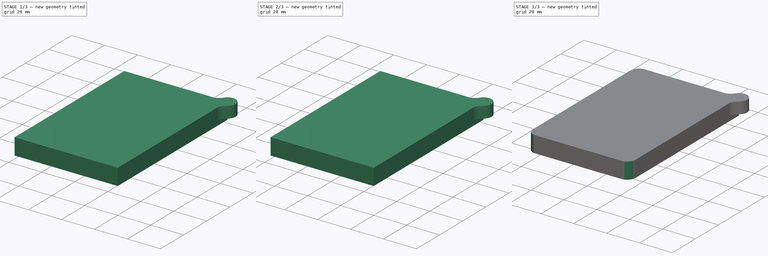
[diagram: build sequence overview — one tinted view per stage of 3, left to right]
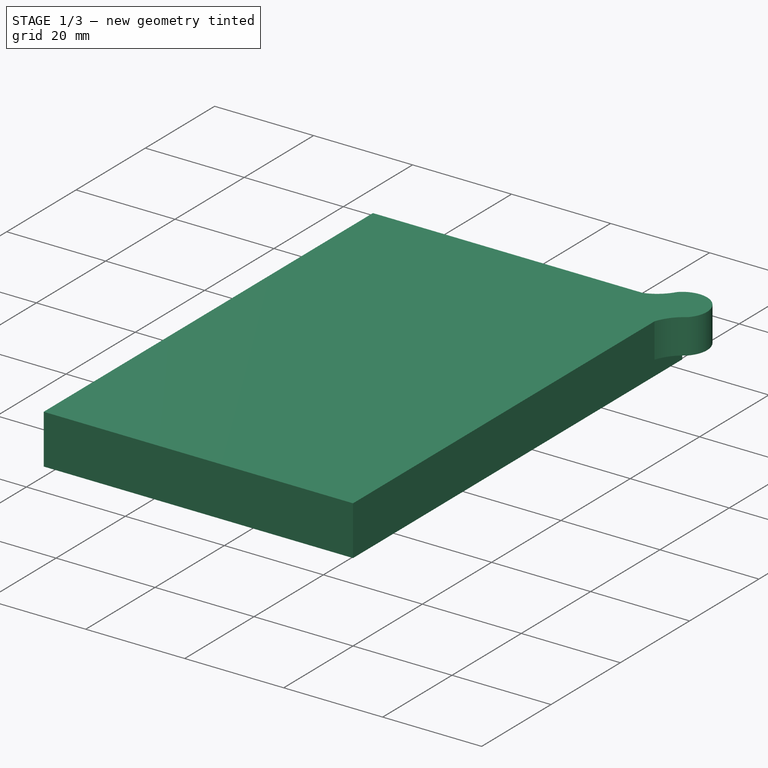
[diagram: stage 1 of 3 — iso view after this stage's code; geometry added in this stage tinted green]
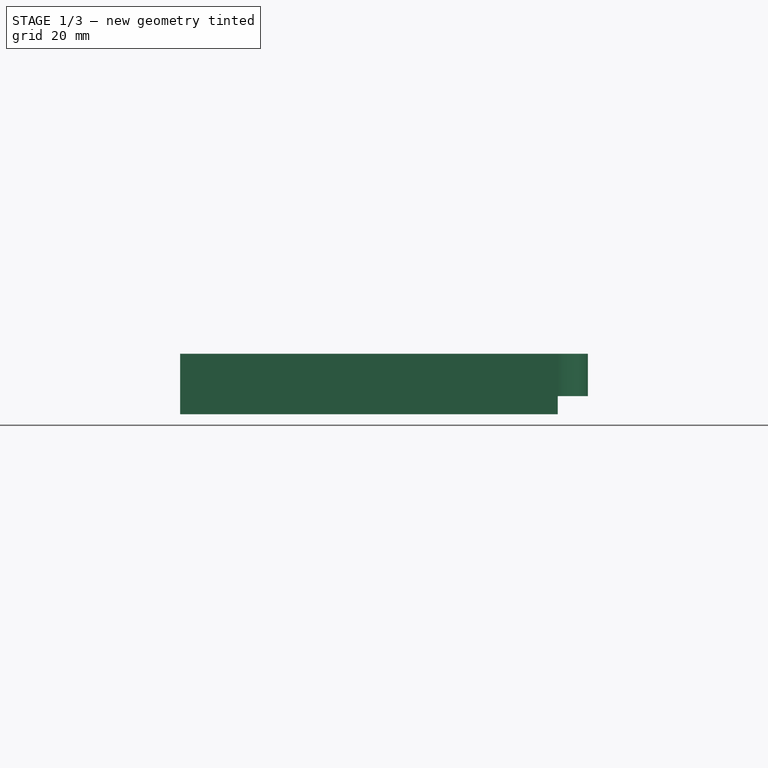
[diagram: stage 1 of 3 — front view after this stage's code; geometry added in this stage tinted green]
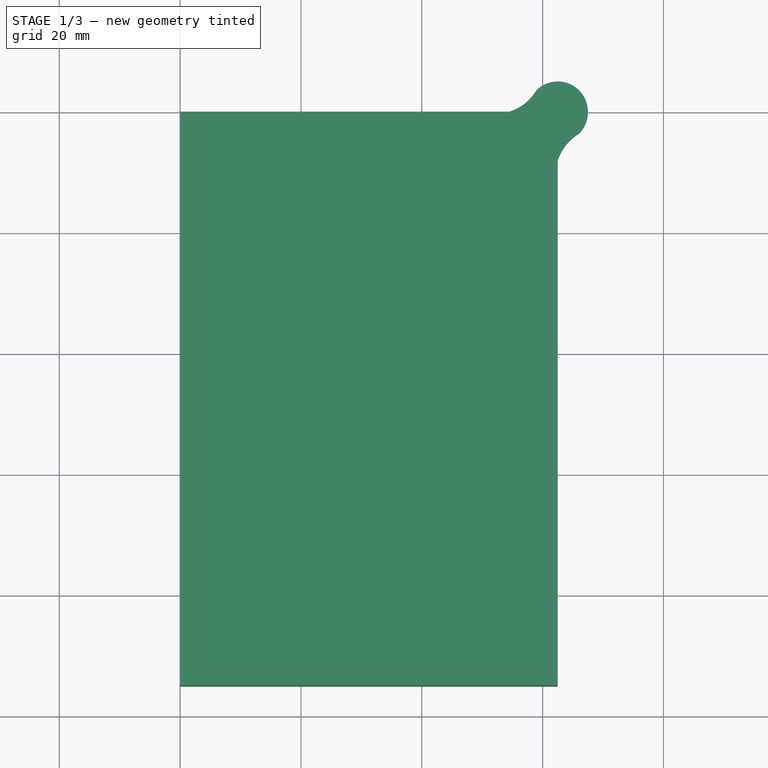
[diagram: stage 1 of 3 — top view after this stage's code; geometry added in this stage tinted green]
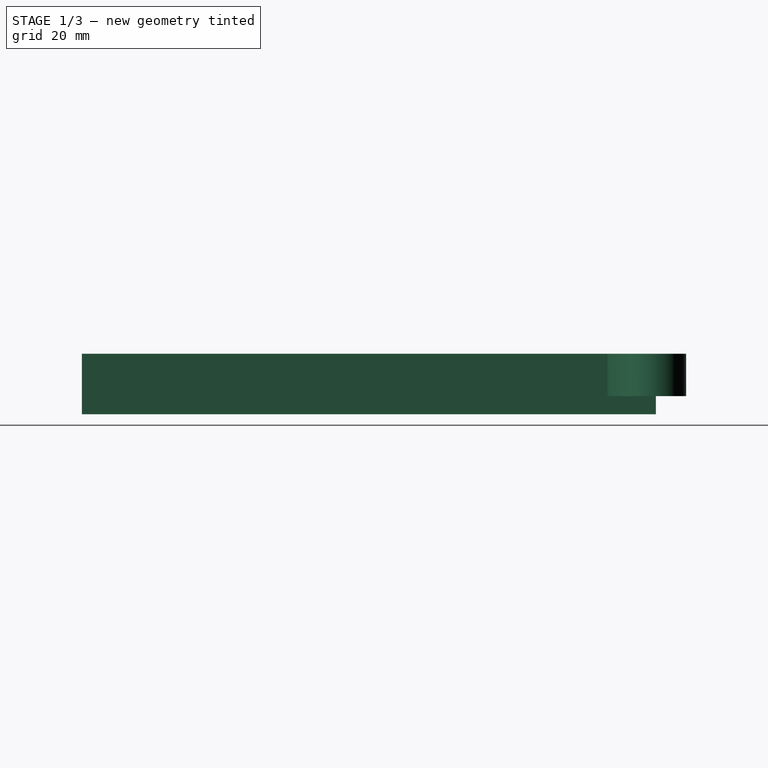
[diagram: stage 1 of 3 — right view after this stage's code; geometry added in this stage tinted green]
FCSTD DOCUMENT  (FreeCAD 0.20R29410 (Git))
Label: kit
License: All rights reserved
LicenseURL: http://en.wikipedia.org/wiki/All_rights_reserved
objects: Sketcher::SketchObject×4, PartDesign::Pad×3, PartDesign::Pocket×1, PartDesign::Fillet×1, PartDesign::Body×1
note: 15 computed .brp shape members not serialized (recipe doc carries the construction recipe); baked Part::Feature solids carry a one-line shape summary decoded from their .brp

FEATURE [Sketcher::SketchObject] Sketch
  FullyConstrained = true
  MapMode = 5
  Support = -> [XY_Plane]
  sketch-geometry (4):
    g0: LineSegment StartX=0 StartY=0 StartZ=0 EndX=62.5 EndY=0 EndZ=0
    g1: LineSegment StartX=62.5 StartY=0 StartZ=0 EndX=62.5 EndY=-95 EndZ=0
    g2: LineSegment StartX=62.5 StartY=-95 StartZ=0 EndX=0 EndY=-95 EndZ=0
    g3: LineSegment StartX=0 StartY=-95 StartZ=0 EndX=0 EndY=0 EndZ=0
  constraints (11):
    c: Coincident(g0,g1)
    c: Coincident(g1,g2)
    c: Coincident(g2,g3)
    c: Coincident(g3,g0)
    c: Horizontal(g0)
    c: Horizontal(g2)
    c: Vertical(g1)
    c: Vertical(g3)
    c: Coincident(g0,g-1)
    c: Distance(g0) = 62.5
    c: Distance(g3) = 95
FEATURE [PartDesign::Pad] Pad
  Direction = (0,0,1)
  Length = 10
  Length2 = 10
  Profile = -> Sketch
  ReferenceAxis = -> Sketch [N_Axis]
  Type = 0
FEATURE [Sketcher::SketchObject] Sketch001
  ExternalGeometry = -> [Pad]
  FullyConstrained = false
  MapMode = 5
  Placement = pos=(0,0,10) rot=(0,0,1;0rad)
  Support = -> [Pad]
  sketch-geometry (17):
    g0: LineSegment StartX=62.5 StartY=0 StartZ=0 EndX=62.5 EndY=-2 EndZ=0
    g1: LineSegment StartX=62.5 StartY=-2 StartZ=0 EndX=60.5 EndY=-2 EndZ=0
    g2: LineSegment StartX=62.5 StartY=0 StartZ=0 EndX=62.5 EndY=3 EndZ=0
    g3: Circle CenterX=62.5 CenterY=0 CenterZ=0 NormalX=0 NormalY=0 NormalZ=1 AngleXU=0 Radius=5
    g4: LineSegment StartX=62.5 StartY=0 StartZ=0 EndX=54.5 EndY=0 EndZ=0
    g5: LineSegment StartX=62.5 StartY=0 StartZ=0 EndX=62.5 EndY=-8 EndZ=0
    g6: LineSegment StartX=62.5 StartY=0 StartZ=0 EndX=67.5 EndY=0 EndZ=0
    g7: LineSegment StartX=62.5 StartY=0 StartZ=0 EndX=62.5 EndY=5 EndZ=0
    g8: LineSegment StartX=62.5 StartY=0 StartZ=0 EndX=58.9645 EndY=3.53553 EndZ=0
    g9: LineSegment StartX=62.5 StartY=0 StartZ=0 EndX=66.0355 EndY=-3.53554 EndZ=0
    g10: ArcOfCircle CenterX=52.1469 CenterY=7.55788 CenterZ=0 NormalX=0 NormalY=0 NormalZ=1 AngleXU=0 Radius=7.91572 StartAngle=5.01422 EndAngle=5.75015
    g11: ArcOfCircle CenterX=70.3041 CenterY=-10.5481 CenterZ=0 NormalX=0 NormalY=0 NormalZ=1 AngleXU=0 Radius=8.20954 StartAngle=2.11759 EndAngle=2.826
    g12: ArcOfCircle CenterX=62.5 CenterY=0 CenterZ=0 NormalX=0 NormalY=0 NormalZ=1 AngleXU=0 Radius=5 StartAngle=5.49778 EndAngle=8.63938
    g13: ArcOfCircle CenterX=62.5 CenterY=0 CenterZ=0 NormalX=0 NormalY=0 NormalZ=1 AngleXU=0 Radius=5 StartAngle=5.49778 EndAngle=8.63938
    g14: ArcOfCircle CenterX=52.1469 CenterY=7.55788 CenterZ=0 NormalX=0 NormalY=0 NormalZ=1 AngleXU=0 Radius=7.91572 StartAngle=5.01422 EndAngle=5.75015
    g15: ArcOfCircle CenterX=70.3041 CenterY=-10.5481 CenterZ=0 NormalX=0 NormalY=0 NormalZ=1 AngleXU=0 Radius=8.20954 StartAngle=2.11759 EndAngle=2.826
    g16: LineSegment StartX=54.5 StartY=0 StartZ=0 EndX=62.5 EndY=-8 EndZ=0
  constraints (43):
    c: Coincident(g0,g-4)
    c: Coincident(g1,g0)
    c: Horizontal(g1)
    c: Distance(g0) = 2
    c: Vertical(g0)
    c: Distance(g1) = 2
    c: Coincident(g2,g0)
    c: Vertical(g2)
    c: Distance(g2) = 3
    c: Coincident(g3,g0)
    c: Diameter(g3) = 10
    c: Coincident(g4,g0)
    c: Distance(g4) = 8
    c: Horizontal(g4)
    c: Coincident(g5,g0)
    c: Distance(g5) = 8
    c: Vertical(g5)
    c: Coincident(g6,g0)
    c: PointOnObject(g6,g3)
    c: Horizontal(g6)
    c: Coincident(g7,g0)
    c: PointOnObject(g7,g3)
    c: Vertical(g7)
    c: Coincident(g8,g0)
    c: PointOnObject(g8,g3)
    c: Coincident(g9,g0)
    c: Angle(g8,g4) = 0.785398
    c: Coincident(g10,g4)
    c: Coincident(g10,g8)
    c: Coincident(g11,g5)
    c: Coincident(g11,g9)
    c: Coincident(g12,g0)
    c: Coincident(g12,g8)
    c: Coincident(g12,g9)
    c: Coincident(g13,g0)
    c: Coincident(g13,g8)
    c: Coincident(g14,g4)
    c: Coincident(g14,g13)
    c: Coincident(g15,g13)
    c: Coincident(g15,g5)
    c: Tangent(g15,g11)
    c: Coincident(g16,g14)
    c: Coincident(g16,g15)
FEATURE [PartDesign::Pad] Pad001
  BaseFeature = -> Pad
  Direction = (0,0,1)
  Length = 7
  Length2 = 10
  Profile = -> Sketch001
  ReferenceAxis = -> Sketch001 [N_Axis]
  Reversed = true
  Type = 0
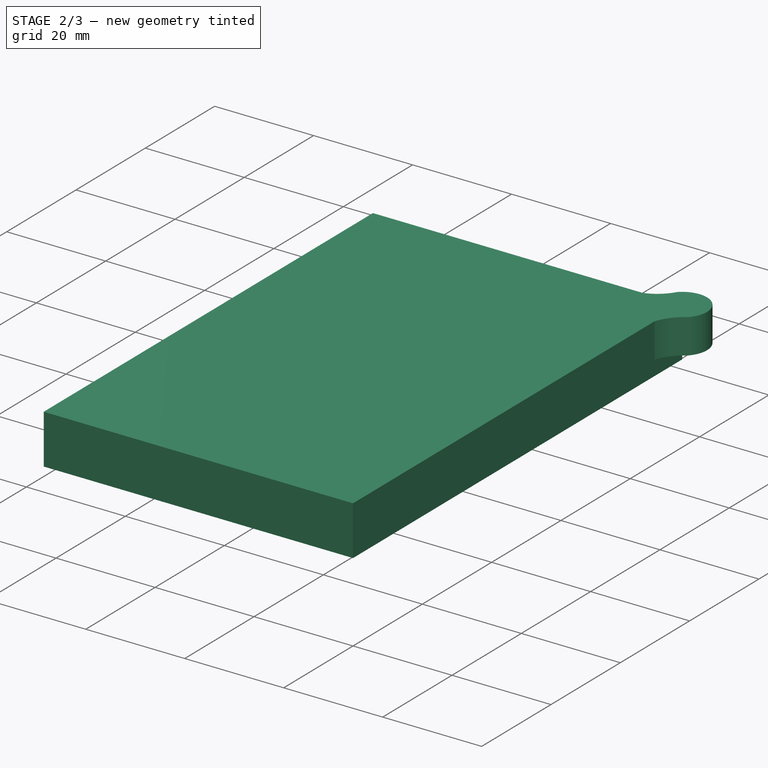
[diagram: stage 2 of 3 — iso view after this stage's code; geometry added in this stage tinted green]
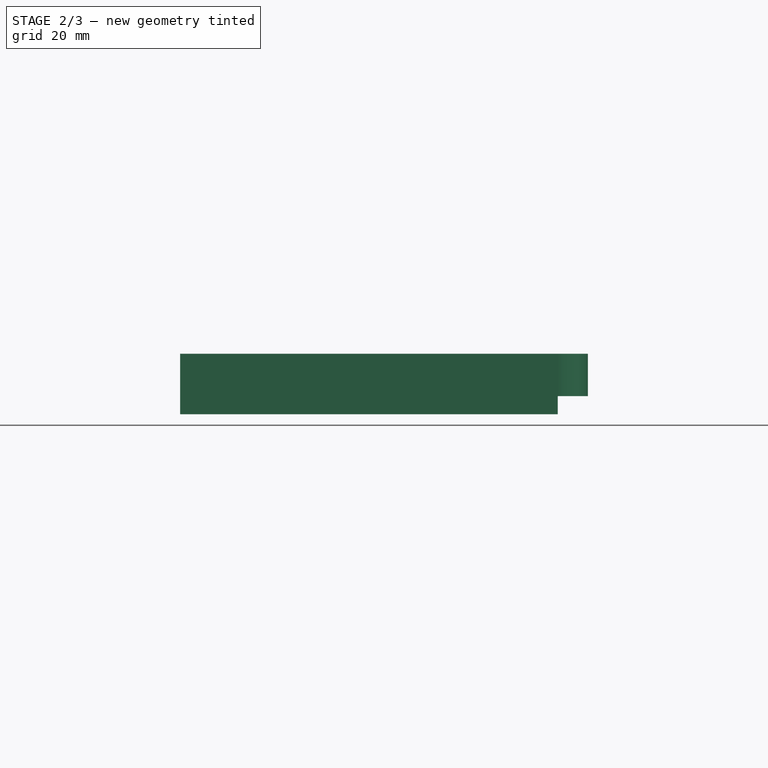
[diagram: stage 2 of 3 — front view after this stage's code; geometry added in this stage tinted green]
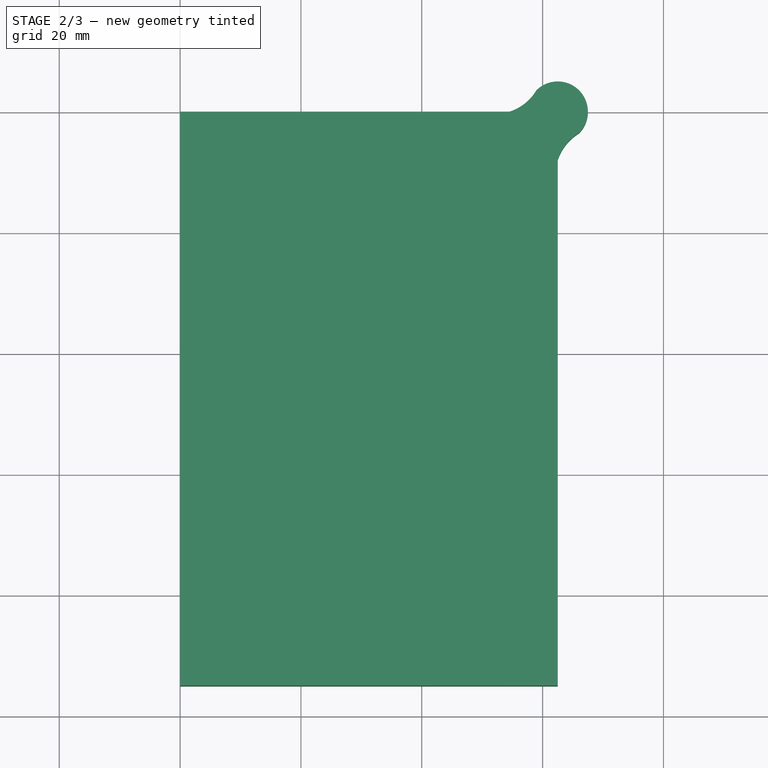
[diagram: stage 2 of 3 — top view after this stage's code; geometry added in this stage tinted green]
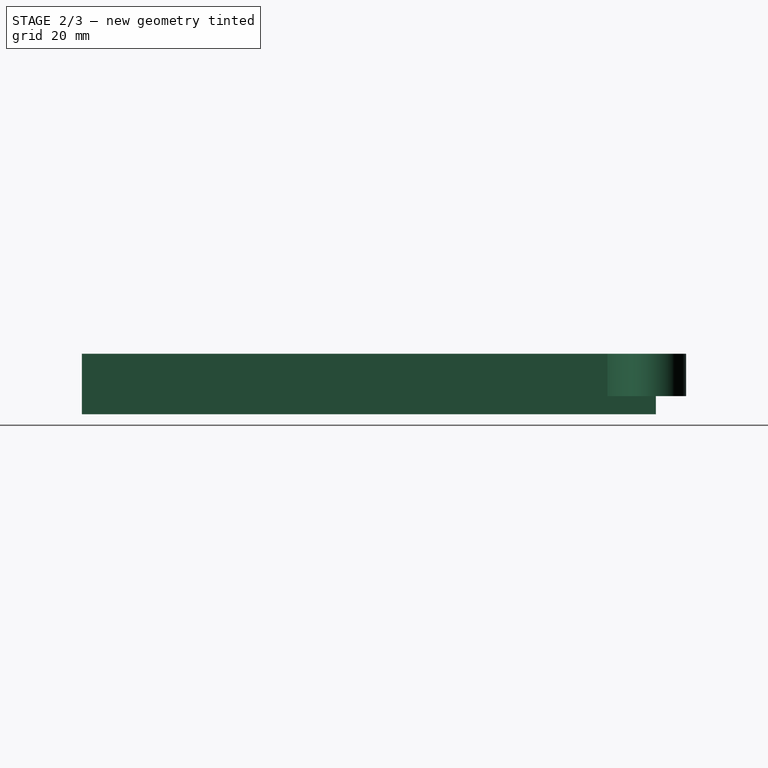
[diagram: stage 2 of 3 — right view after this stage's code; geometry added in this stage tinted green]
FEATURE [Sketcher::SketchObject] Sketch002
  ExternalGeometry = -> [Pad001]
  FullyConstrained = true
  MapMode = 5
  Placement = pos=(0,0,0) rot=(1,0,0;3.14159rad)
  Support = -> [Pad001]
  sketch-geometry (5):
    g0: LineSegment StartX=54.5 StartY=0 StartZ=0 EndX=62.5 EndY=0 EndZ=0
    g1: LineSegment StartX=62.5 StartY=0 StartZ=0 EndX=62.5 EndY=8 EndZ=0
    g2: ArcOfCircle CenterX=62.5 CenterY=0 CenterZ=0 NormalX=0 NormalY=0 NormalZ=1 AngleXU=0 Radius=5 StartAngle=3.92699 EndAngle=7.06859
    g3: ArcOfCircle CenterX=52.1469 CenterY=-7.55788 CenterZ=0 NormalX=0 NormalY=0 NormalZ=1 AngleXU=0 Radius=7.91572 StartAngle=0.533031 EndAngle=1.26896
    g4: ArcOfCircle CenterX=70.3041 CenterY=10.5481 CenterZ=0 NormalX=0 NormalY=0 NormalZ=1 AngleXU=0 Radius=8.20954 StartAngle=3.45719 EndAngle=4.1656
  constraints (13):
    c: Coincident(g0,g-5)
    c: Coincident(g0,g-4)
    c: Coincident(g1,g0)
    c: Coincident(g1,g-3)
    c: Coincident(g2,g0)
    c: Coincident(g2,g-4)
    c: Coincident(g2,g-5)
    c: Coincident(g3,g0)
    c: Coincident(g3,g2)
    c: Tangent(g3,g-5)
    c: Coincident(g4,g1)
    c: Coincident(g4,g2)
    c: Tangent(g4,g-3)
FEATURE [PartDesign::Pocket] Pocket
  BaseFeature = -> Pad001
  Direction = (0,0,1)
  Length = 3
  Length2 = 5
  Profile = -> Sketch002
  ReferenceAxis = -> Sketch002 [N_Axis]
  Type = 0
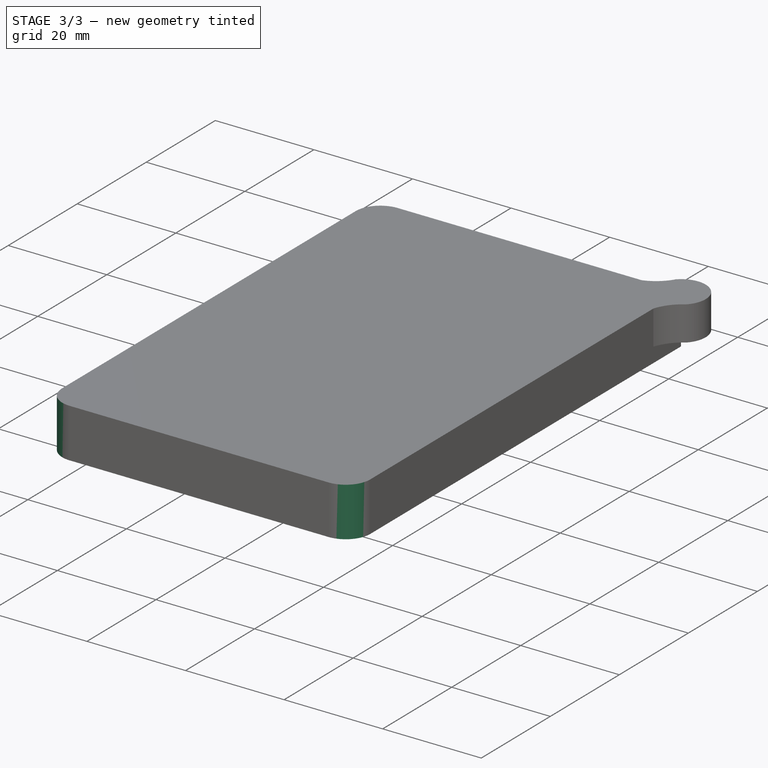
[diagram: stage 3 of 3 — iso view after this stage's code; geometry added in this stage tinted green]
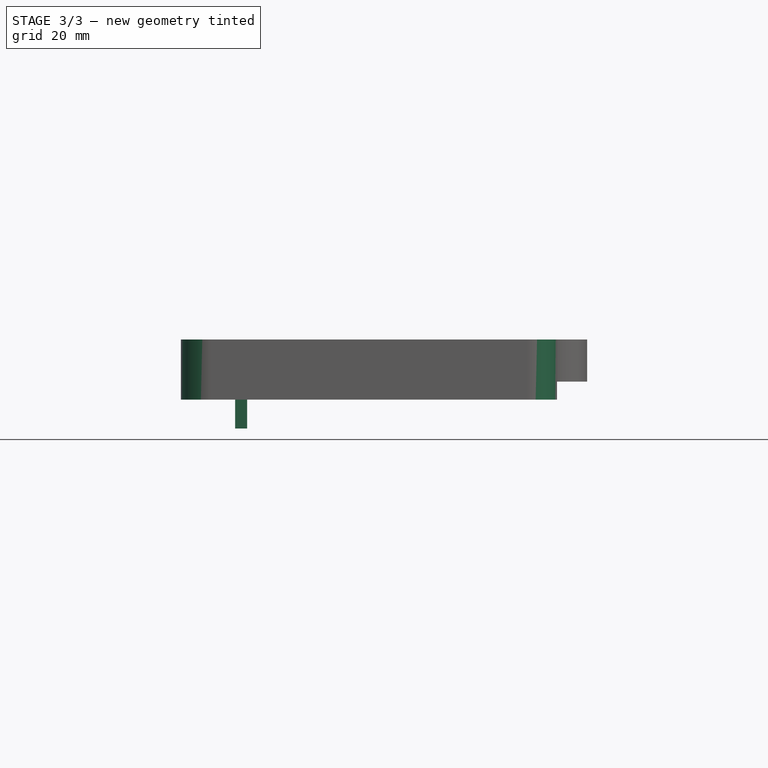
[diagram: stage 3 of 3 — front view after this stage's code; geometry added in this stage tinted green]
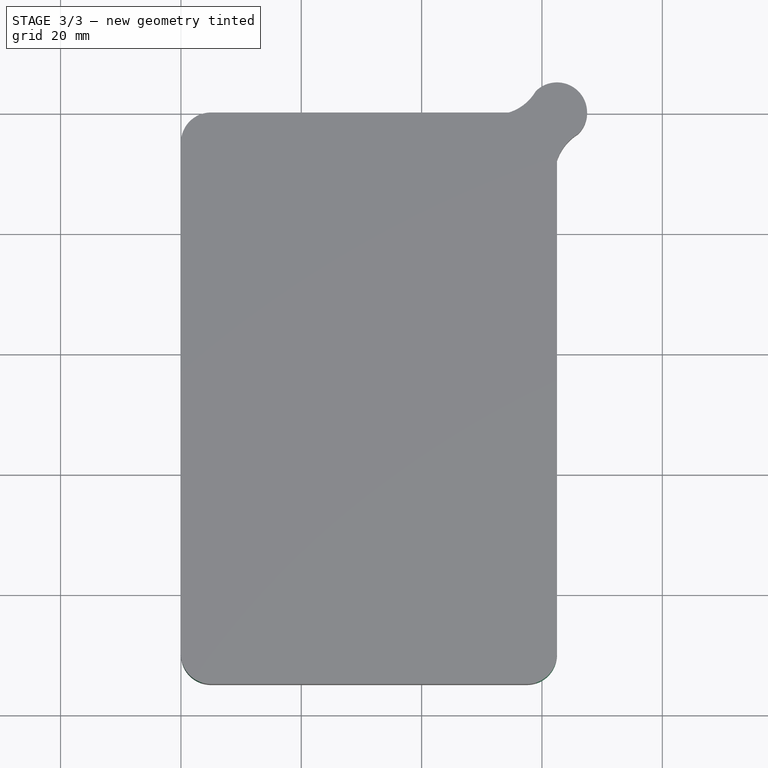
[diagram: stage 3 of 3 — top view after this stage's code; geometry added in this stage tinted green]
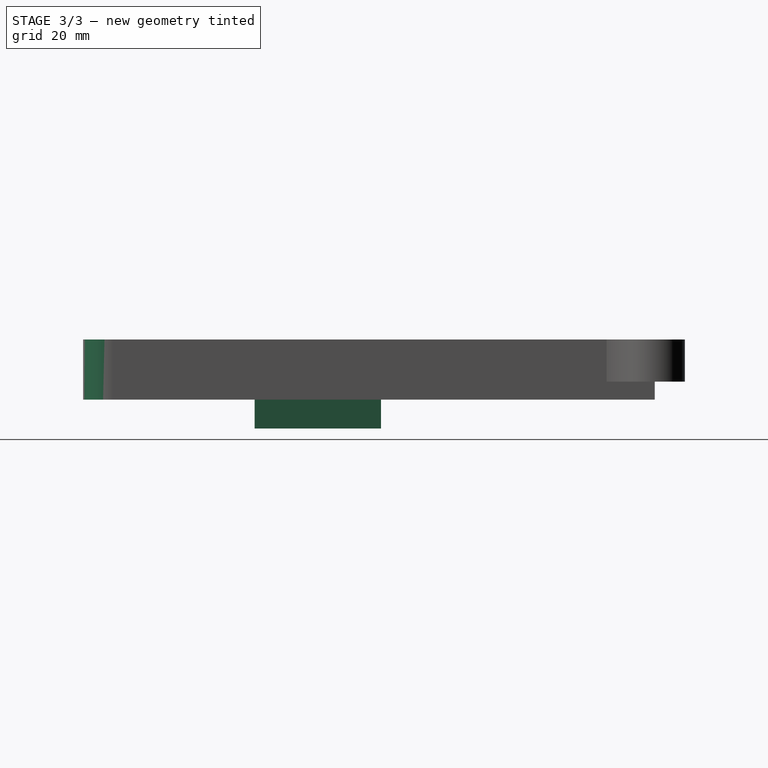
[diagram: stage 3 of 3 — right view after this stage's code; geometry added in this stage tinted green]
FEATURE [Sketcher::SketchObject] Sketch003
  ExternalGeometry = -> [Pocket]
  FullyConstrained = true
  MapMode = 5
  Placement = pos=(0,0,0) rot=(1,0,0;3.14159rad)
  Support = -> [Pocket]
  sketch-geometry (6):
    g0: LineSegment StartX=0 StartY=95 StartZ=0 EndX=0 EndY=66.5 EndZ=0
    g1: LineSegment StartX=0 StartY=66.5 StartZ=0 EndX=9 EndY=66.5 EndZ=0
    g2: LineSegment StartX=9 StartY=66.5 StartZ=0 EndX=11 EndY=66.5 EndZ=0
    g3: LineSegment StartX=11 StartY=66.5 StartZ=0 EndX=11 EndY=45.5 EndZ=0
    g4: LineSegment StartX=11 StartY=45.5 StartZ=0 EndX=9 EndY=45.5 EndZ=0
    g5: LineSegment StartX=9 StartY=45.5 StartZ=0 EndX=9 EndY=66.5 EndZ=0
  constraints (17):
    c: Coincident(g0,g-3)
    c: Distance(g0) = 28.5
    c: Vertical(g0)
    c: Coincident(g1,g0)
    c: Horizontal(g1)
    c: Distance(g1) = 9
    c: Coincident(g2,g3)
    c: Coincident(g3,g4)
    c: Coincident(g4,g5)
    c: Coincident(g5,g2)
    c: Horizontal(g2)
    c: Horizontal(g4)
    c: Vertical(g3)
    c: Vertical(g5)
    c: Coincident(g2,g1)
    c: Distance(g2) = 2
    c: Distance(g5) = 21
FEATURE [PartDesign::Pad] Pad002
  BaseFeature = -> Pocket
  Direction = (0,0,-1)
  Length = 4.8
  Length2 = 10
  Profile = -> Sketch003
  ReferenceAxis = -> Sketch003 [N_Axis]
  Type = 0
FEATURE [PartDesign::Fillet] Fillet
  Base = -> Pad002 [Edge5,Edge24,Edge25]
  BaseFeature = -> Pad002
  Radius = 5
  SupportTransform = false
  UseAllEdges = false
FEATURE [PartDesign::Body] Body
  Group = -> [Sketch,Pad,Sketch001,Pad001,Sketch002,Pocket,Sketch003,Pad002,Fillet]
  Origin = -> Origin
  Tip = -> Fillet
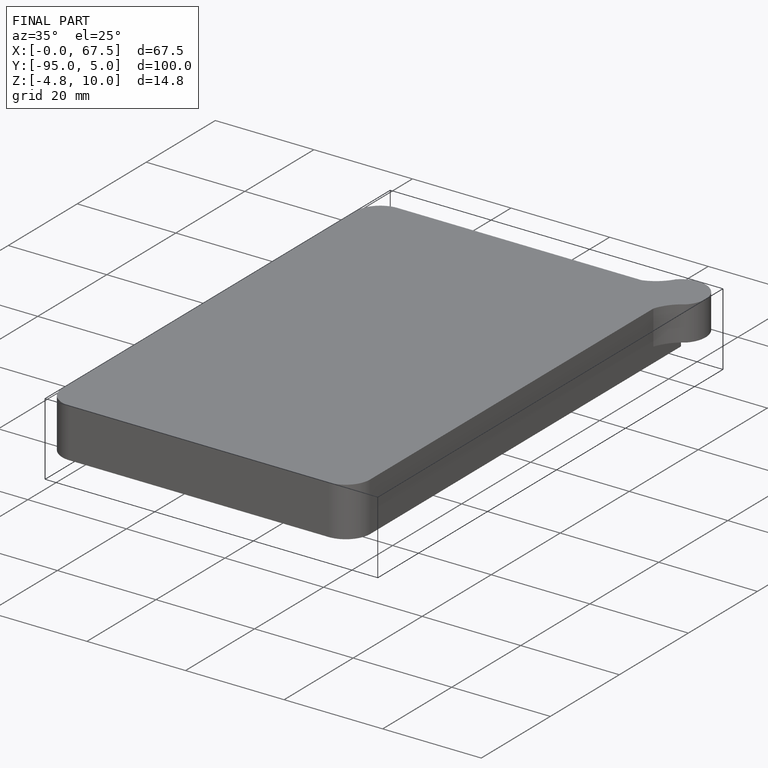
[diagram: finished part — iso view with bounding-box wireframe]
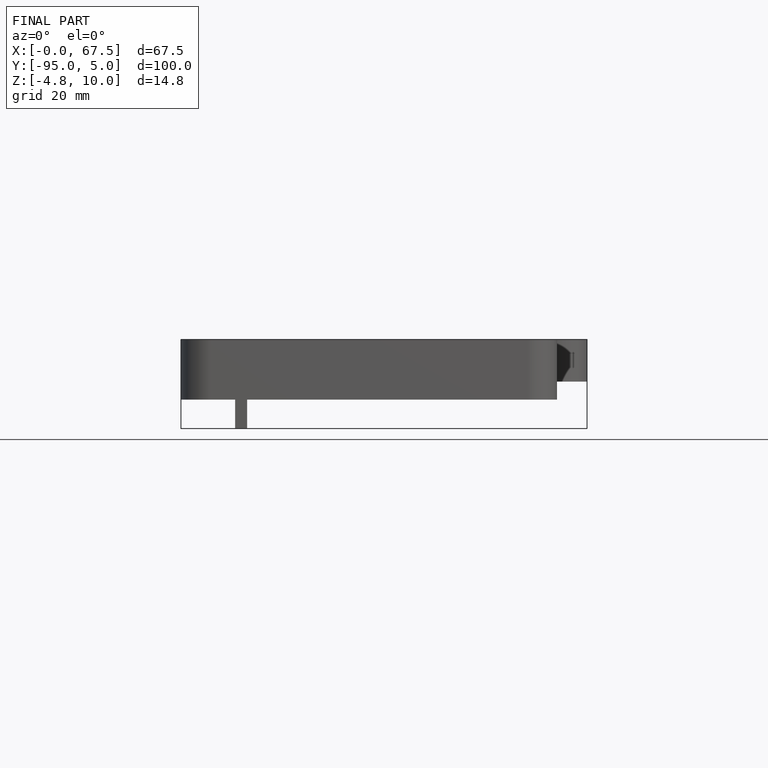
[diagram: finished part — front view with bounding-box wireframe]
